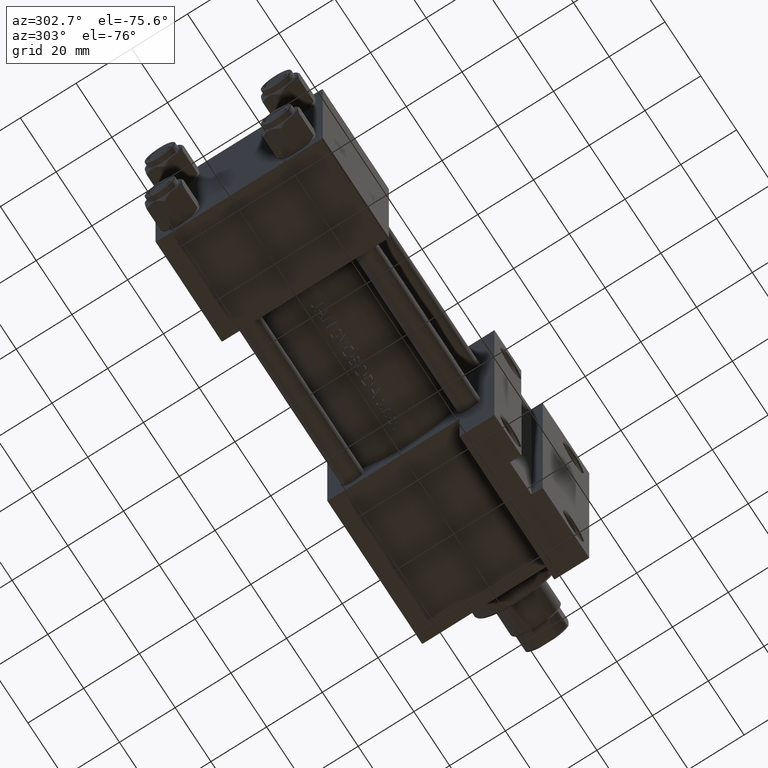
[diagram: clean part render]
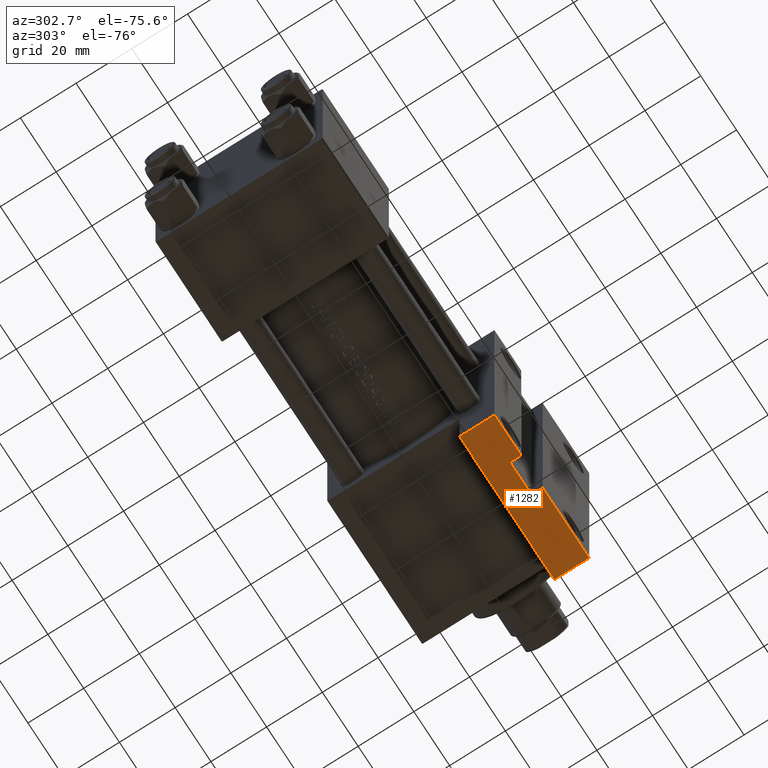
[diagram: same view with one face highlighted and labeled with its STEP entity id]
A machine part, auxiliary view. The second image highlights one B-rep face of the part: STEP entity #1282.
In plain terms, the highlighted planar face has unit normal (0, 0, -1).
Its self-contained STEP definition (entity closure, byte-faithful):
#720 = VERTEX_POINT ( 'NONE', #27125 ) ;
#1282 = ADVANCED_FACE ( 'NONE', ( #2528 ), #47886, .T. ) ;
#1288 = EDGE_CURVE ( 'NONE', #28456, #34348, #42282, .T. ) ;
#1700 = CARTESIAN_POINT ( 'NONE',  ( 96.00000000000000000, 51.50000000000000711, -17.49999999999999645 ) ) ;
#1803 = ORIENTED_EDGE ( 'NONE', *, *, #1288, .F. ) ;
#2084 = CARTESIAN_POINT ( 'NONE',  ( 96.00000000000000000, 51.50000000000000711, -17.49999999999999645 ) ) ;
#2528 = FACE_OUTER_BOUND ( 'NONE', #18268, .T. ) ;
#2574 = CARTESIAN_POINT ( 'NONE',  ( 111.0000000000000000, 51.50000000000000711, -25.99999999999999645 ) ) ;
#3682 = VERTEX_POINT ( 'NONE', #48092 ) ;
#4604 = VECTOR ( 'NONE', #39665, 1000.000000000000000 ) ;
#4701 = CARTESIAN_POINT ( 'NONE',  ( 149.0000000000000000, 51.49999999999999289, -17.49999999999999645 ) ) ;
#4800 = DIRECTION ( 'NONE',  ( 1.000000000000000000, -2.618450529776313247E-16, 0.000000000000000000 ) ) ;
#4923 = VERTEX_POINT ( 'NONE', #21515 ) ;
#5199 = LINE ( 'NONE', #4701, #31710 ) ;
#5313 = DIRECTION ( 'NONE',  ( 0.000000000000000000, 0.000000000000000000, -1.000000000000000000 ) ) ;
#6165 = CARTESIAN_POINT ( 'NONE',  ( 123.0000000000000000, 51.50000000000000711, -25.99999999999999645 ) ) ;
#10738 = VECTOR ( 'NONE', #31418, 1000.000000000000000 ) ;
#10748 = CARTESIAN_POINT ( 'NONE',  ( 111.0000000000000000, 51.50000000000000711, -25.99999999999999645 ) ) ;
#11120 = EDGE_CURVE ( 'NONE', #720, #4923, #35872, .T. ) ;
#13980 = VECTOR ( 'NONE', #17907, 1000.000000000000000 ) ;
#14640 = DIRECTION ( 'NONE',  ( 1.000000000000000000, -2.618450529776313247E-16, 0.000000000000000000 ) ) ;
#14829 = ORIENTED_EDGE ( 'NONE', *, *, #39021, .F. ) ;
#15495 = ORIENTED_EDGE ( 'NONE', *, *, #26478, .F. ) ;
#16412 = CARTESIAN_POINT ( 'NONE',  ( 96.00000000000000000, 51.50000000000000711, -29.99999999999999645 ) ) ;
#17197 = LINE ( 'NONE', #10748, #13980 ) ;
#17585 = CARTESIAN_POINT ( 'NONE',  ( 96.00000000000000000, 51.50000000000000711, -17.49999999999999645 ) ) ;
#17907 = DIRECTION ( 'NONE',  ( -0.000000000000000000, -0.000000000000000000, -1.000000000000000000 ) ) ;
#18268 = EDGE_LOOP ( 'NONE', ( #15495, #14829, #31367, #33625, #45175, #31552, #35553, #1803 ) ) ;
#18615 = VECTOR ( 'NONE', #5313, 1000.000000000000000 ) ;
#18882 = EDGE_CURVE ( 'NONE', #4923, #45218, #48633, .T. ) ;
#20439 = LINE ( 'NONE', #1700, #4604 ) ;
#20549 = LINE ( 'NONE', #39779, #10738 ) ;
#20716 = DIRECTION ( 'NONE',  ( -0.000000000000000000, -0.000000000000000000, -1.000000000000000000 ) ) ;
#21458 = CARTESIAN_POINT ( 'NONE',  ( 123.0000000000000000, 51.50000000000000711, -29.99999999999999645 ) ) ;
#21515 = CARTESIAN_POINT ( 'NONE',  ( 96.00000000000000000, 51.50000000000000711, -29.99999999999999645 ) ) ;
#23210 = VECTOR ( 'NONE', #14640, 1000.000000000000000 ) ;
#24656 = LINE ( 'NONE', #6165, #25990 ) ;
#25460 = DIRECTION ( 'NONE',  ( -1.000000000000000000, 2.618450529776313247E-16, 0.000000000000000000 ) ) ;
#25990 = VECTOR ( 'NONE', #20716, 1000.000000000000000 ) ;
#26478 = EDGE_CURVE ( 'NONE', #45040, #28456, #24656, .T. ) ;
#27125 = CARTESIAN_POINT ( 'NONE',  ( 96.00000000000000000, 51.50000000000000711, -17.49999999999999645 ) ) ;
#28456 = VERTEX_POINT ( 'NONE', #21458 ) ;
#30398 = CARTESIAN_POINT ( 'NONE',  ( 123.0000000000000000, 51.50000000000000711, -25.99999999999999645 ) ) ;
#30523 = CARTESIAN_POINT ( 'NONE',  ( 111.0000000000000000, 51.50000000000000711, -29.99999999999999645 ) ) ;
#31367 = ORIENTED_EDGE ( 'NONE', *, *, #44738, .T. ) ;
#31418 = DIRECTION ( 'NONE',  ( 1.000000000000000000, 0.000000000000000000, 0.000000000000000000 ) ) ;
#31552 = ORIENTED_EDGE ( 'NONE', *, *, #43406, .T. ) ;
#31609 = EDGE_CURVE ( 'NONE', #3682, #34348, #5199, .T. ) ;
#31710 = VECTOR ( 'NONE', #38727, 1000.000000000000000 ) ;
#33625 = ORIENTED_EDGE ( 'NONE', *, *, #18882, .F. ) ;
#34348 = VERTEX_POINT ( 'NONE', #40271 ) ;
#35553 = ORIENTED_EDGE ( 'NONE', *, *, #31609, .T. ) ;
#35716 = AXIS2_PLACEMENT_3D ( 'NONE', #17585, #44197, #25460 ) ;
#35872 = LINE ( 'NONE', #2084, #18615 ) ;
#37566 = CARTESIAN_POINT ( 'NONE',  ( 96.00000000000000000, 51.50000000000000711, -29.99999999999999645 ) ) ;
#38707 = VERTEX_POINT ( 'NONE', #2574 ) ;
#38727 = DIRECTION ( 'NONE',  ( 0.000000000000000000, 0.000000000000000000, -1.000000000000000000 ) ) ;
#39021 = EDGE_CURVE ( 'NONE', #38707, #45040, #20549, .T. ) ;
#39665 = DIRECTION ( 'NONE',  ( 1.000000000000000000, -2.618450529776313247E-16, 0.000000000000000000 ) ) ;
#39779 = CARTESIAN_POINT ( 'NONE',  ( 111.0000000000000000, 51.50000000000000711, -25.99999999999999645 ) ) ;
#40271 = CARTESIAN_POINT ( 'NONE',  ( 149.0000000000000000, 51.49999999999999289, -29.99999999999999645 ) ) ;
#42282 = LINE ( 'NONE', #16412, #44398 ) ;
#43406 = EDGE_CURVE ( 'NONE', #720, #3682, #20439, .T. ) ;
#44197 = DIRECTION ( 'NONE',  ( 2.618450529776313247E-16, 1.000000000000000000, 0.000000000000000000 ) ) ;
#44398 = VECTOR ( 'NONE', #4800, 1000.000000000000000 ) ;
#44738 = EDGE_CURVE ( 'NONE', #38707, #45218, #17197, .T. ) ;
#45040 = VERTEX_POINT ( 'NONE', #30398 ) ;
#45175 = ORIENTED_EDGE ( 'NONE', *, *, #11120, .F. ) ;
#45218 = VERTEX_POINT ( 'NONE', #30523 ) ;
#47886 = PLANE ( 'NONE',  #35716 ) ;
#48092 = CARTESIAN_POINT ( 'NONE',  ( 149.0000000000000000, 51.49999999999999289, -17.49999999999999645 ) ) ;
#48633 = LINE ( 'NONE', #37566, #23210 ) ;